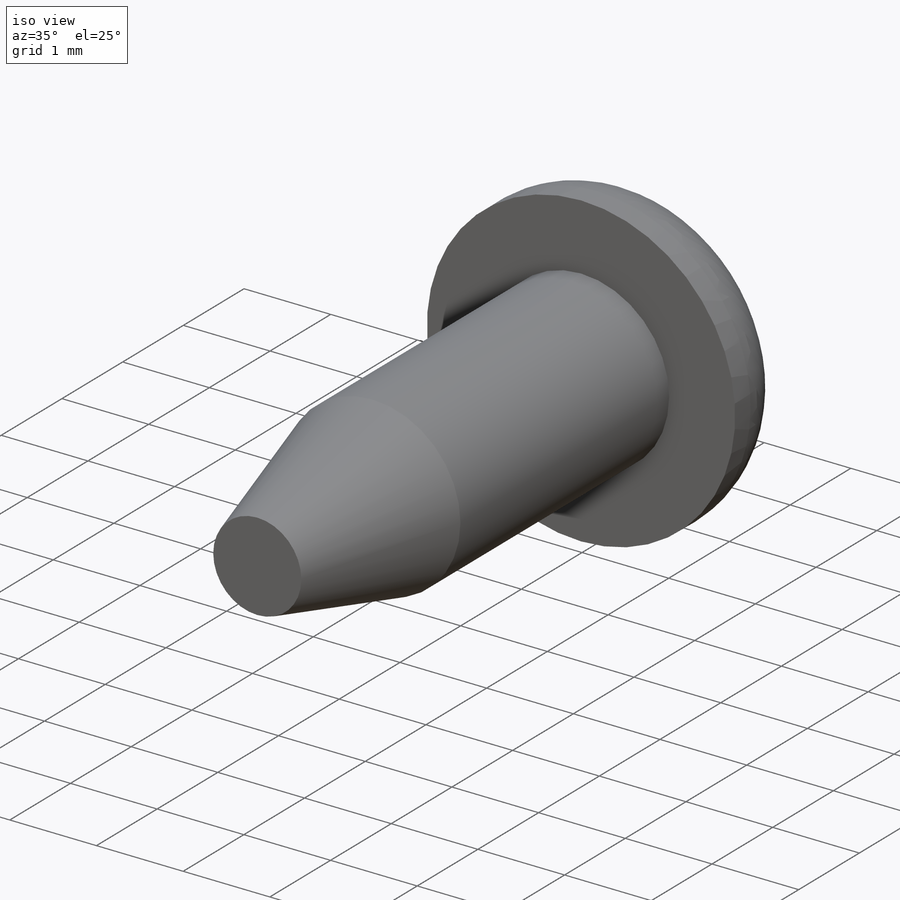
[diagram: iso view]
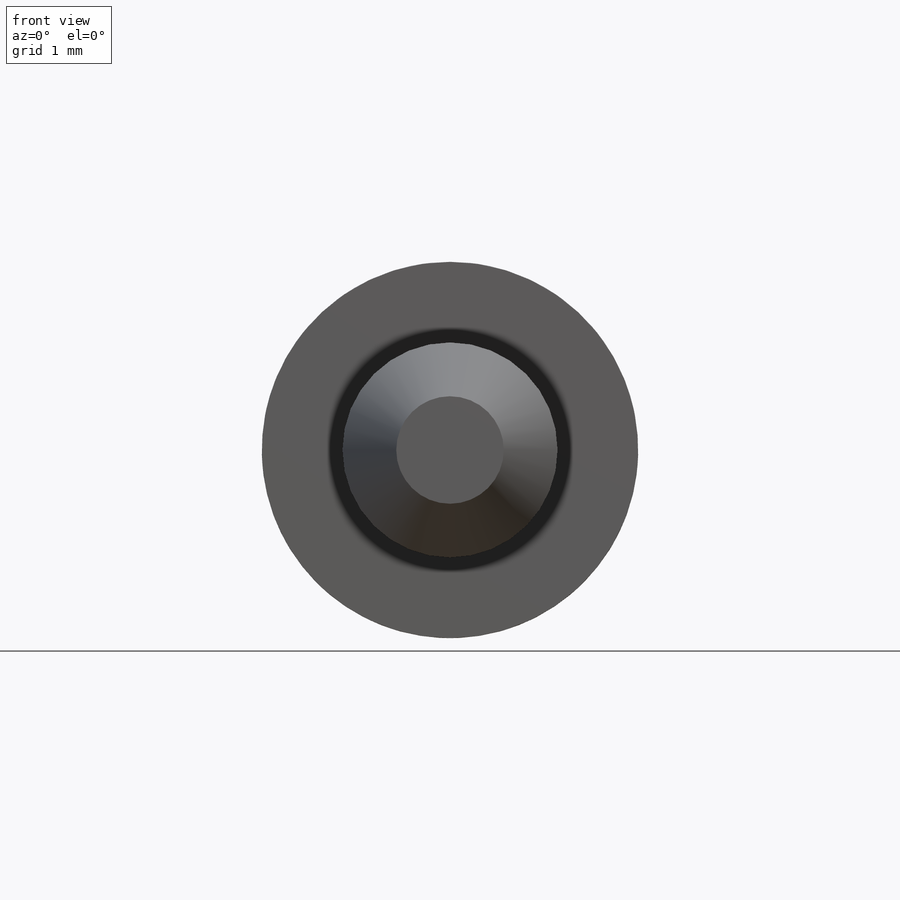
[diagram: front view]
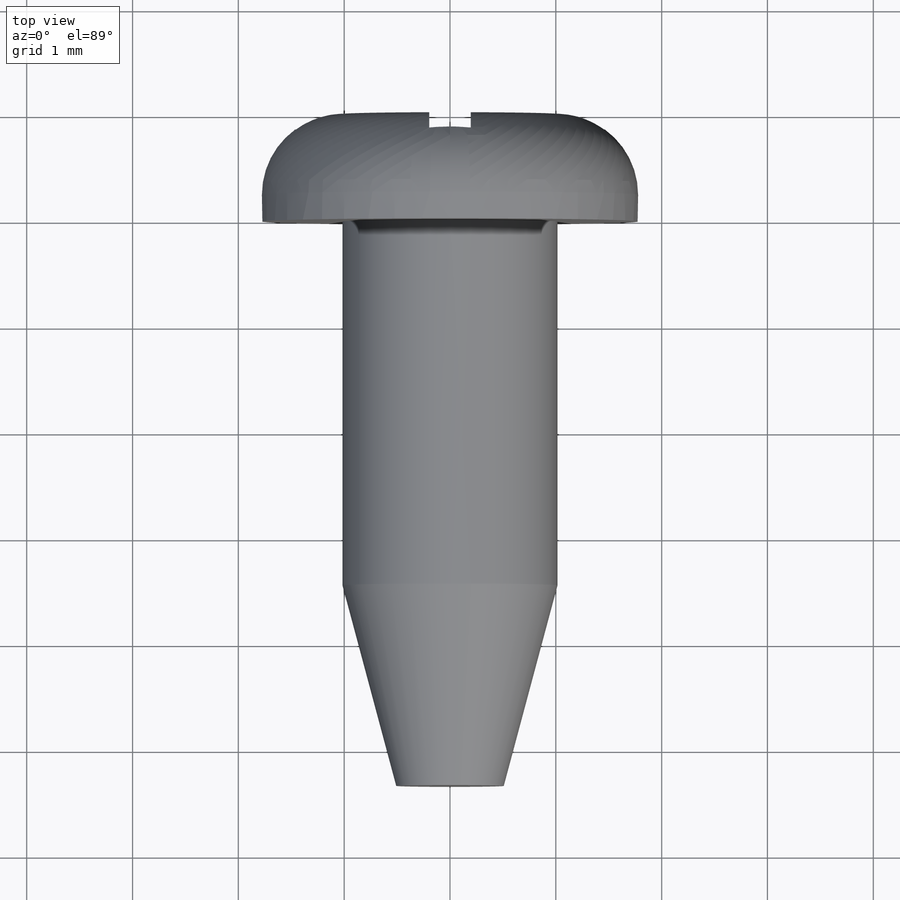
[diagram: top view]
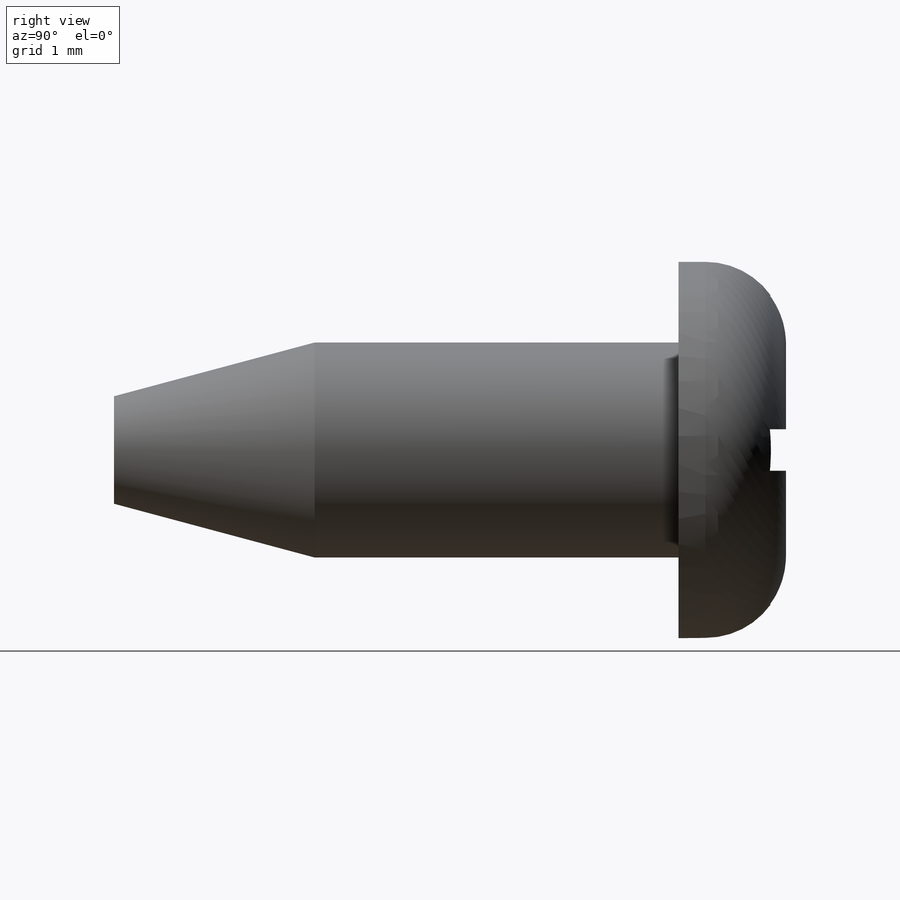
[diagram: right view]
SOLIDWORKS PART (.sldprt)
format: sldprt  version: not decoded by parser v0  size: 226,816 bytes
history: native  units: mm
features: sketch x2, material x1, revolve x1, cut_extrude x1, chamfer x1 (+11 scaffold rows collapsed)
feature tree (17):
  scaffold x11  (default folders/planes/origin — collapsed)
  material  "Material <not specified>"
  sketch  "Sketch1"  dims[c1.D4=~61.521855mm c1.D5=0.762mm c1.D1=6.35mm c1.D2=2.54mm c1.D3=3.175mm c2.D5=~22.264047mm c2.D1=6.35mm c2.D2=1.016mm c2.D3=1.016mm c2.D4=1.778mm]
  revolve  "Revolve1"  Angle=360deg
  sketch  "Sketch2"  dims[D1=4.0]
  cut_extrude  "Cut-Extrude1"  Depth=0.762mm
  chamfer  "Chamfer1"  Distance=0.508mm
decode coverage: 5 of 5 modeling features carry decoded parameters
note: ~ marks probable driven/reference dimensions
note: suppression state not decoded; provenance and decode notes live in map.json
